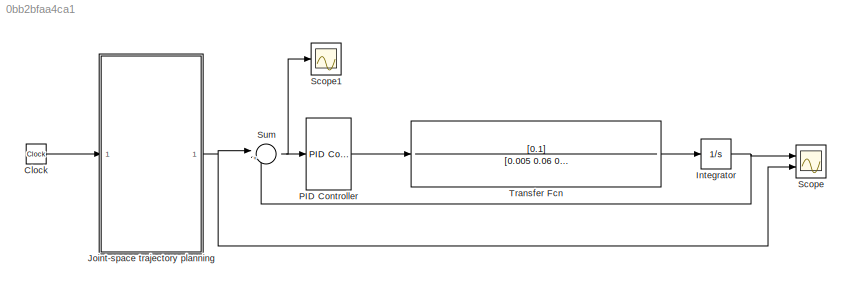
MODEL slx_0bb2bfaa4ca1
KIND model
CONFIG AbsTol = auto
CONFIG EnableMultiTasking = off
CONFIG FixedStep = auto
CONFIG MaxStep = auto
CONFIG MinStep = auto
CONFIG RelTol = 1e-3
CONFIG SampleTimeConstraint = Unconstrained
CONFIG Solver = VariableStepAuto
CONFIG SolverName = VariableStepAuto
CONFIG StartTime = 0.0
CONFIG StopTime = 8
BLOCK [Clock] Clock
BLOCK [Integrator] Integrator
  InitialCondition = -21.89
  Ports = [1, 1]
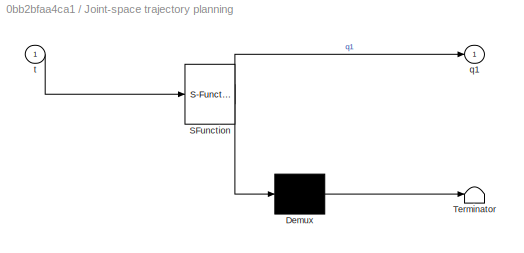
BLOCK [SubSystem] Joint-space trajectory planning 
  ErrorFcn = Stateflow.Translate.translate
  PermitHierarchicalResolution = ExplicitOnly
  Ports = [1, 1]
  RequestExecContextInheritance = off
  SFBlockType = MATLAB Function
  TreatAsAtomicUnit = on
BLOCK [Demux] Joint-space trajectory planning / Demux 
  Outputs = 1
  Ports = [1, 1]
BLOCK [S-Function] Joint-space trajectory planning / SFunction 
  EnableBusSupport = on
  FunctionName = sf_sfun
  PortCounts = [1 2]
  Ports = [1, 2]
  SFcnIsStateOwnerBlock = off
  SFunctionDeploymentMode = off
  Tag = Stateflow S-Function PID 2
BLOCK [Terminator] Joint-space trajectory planning / Terminator 
BLOCK [Outport] Joint-space trajectory planning /q1
  IconDisplay = Port number
  VectorParamsAs1DForOutWhenUnconnected = on
BLOCK [Inport] Joint-space trajectory planning /t
  IconDisplay = Port number
BLOCK [Reference] PID Controller  REF=simulink/Continuous/PID Controller
  Ports = [1, 1]
  SourceBlock = simulink/Continuous/PID Controller
  SourceProductBaseCode = SL
  SourceProductName = Simulink
  SourceType = PID 1dof
BLOCK [Scope] Scope
  Floating = off
  NumInputPorts = 2
  Ports = [2]
  ScopeSpecificationString = Simulink.scopes.TimeScopeBlockCfg('CurrentConfiguration', extmgr.ConfigurationSet(extmgr.Configuration('Core','General UI',true,'FigureColor',[1 1 1]),extmgr.Configuration('Core','Source UI',true),extmgr.Configuration('Sources','WiredSimulink',true),extmgr.Configuration('Visuals','Time Domain',true,'SerializedDisplays',{struct('MinYLimReal','-19.61685','MaxYLimReal','27.49497','YLabelReal','','Min...<+1811ch>
BLOCK [Scope] Scope1
  Floating = off
  NumInputPorts = 1
  Ports = [1]
  ScopeSpecificationString = Simulink.scopes.TimeScopeBlockCfg('CurrentConfiguration', extmgr.ConfigurationSet(extmgr.Configuration('Core','General UI',true),extmgr.Configuration('Core','Source UI',true),extmgr.Configuration('Sources','WiredSimulink',true,'DataLoggingVariableName','ScopeData1'),extmgr.Configuration('Visuals','Time Domain',true,'SerializedDisplays',{struct('MinYLimReal','-0.45019','MaxYLimReal','0.60483','YLab...<+1362ch>
BLOCK [Sum] Sum
  IconShape = round
  InputSameDT = off
  Inputs = |+-
  OutDataTypeStr = Inherit: Inherit via internal rule
  Ports = [2, 1]
  SaturateOnIntegerOverflow = off
BLOCK [TransferFcn] Transfer Fcn
  Denominator = [0.005 0.06 0.1001]
  Numerator = [0.1]
LINE Clock:1 -> Joint-space trajectory planning :1
NET Integrator:1 -> Scope:1, Sum:2
NET Joint-space trajectory planning :1 -> Scope:2, Sum:1
LINE PID Controller:1 -> Transfer Fcn:1
NET Sum:1 -> PID Controller:1, Scope1:1
LINE Transfer Fcn:1 -> Integrator:1
note: NET lines group one-source signal fan-out (src -> all destinations, sorted); 1:1 wires keep LINE
CHART Joint-space trajectory planning
 states=1 transitions=1
  STATE_LABEL 'eML_blk_kernel()'
  STATE_LABEL 'SCRIPT:\nfunction q1  = fcn(t)\n\nq1= -21.89 + 1.75125*t^(2) - 0.146*t^(3);\n% q2= 38.51 + 1.415*t^(2) -0.118*t^(3);\n% q3= 14.89 + -1.30125*t^(2) + 0.1084375*t^(3);\n% q4= 20.75 + 0.3740526*t^(2) - 0.031171875*t^(3);\n% q5= 8.891 + 1.0542*t^(2) - 0.0878*t^(3);\n% q6=0;\n\n'
